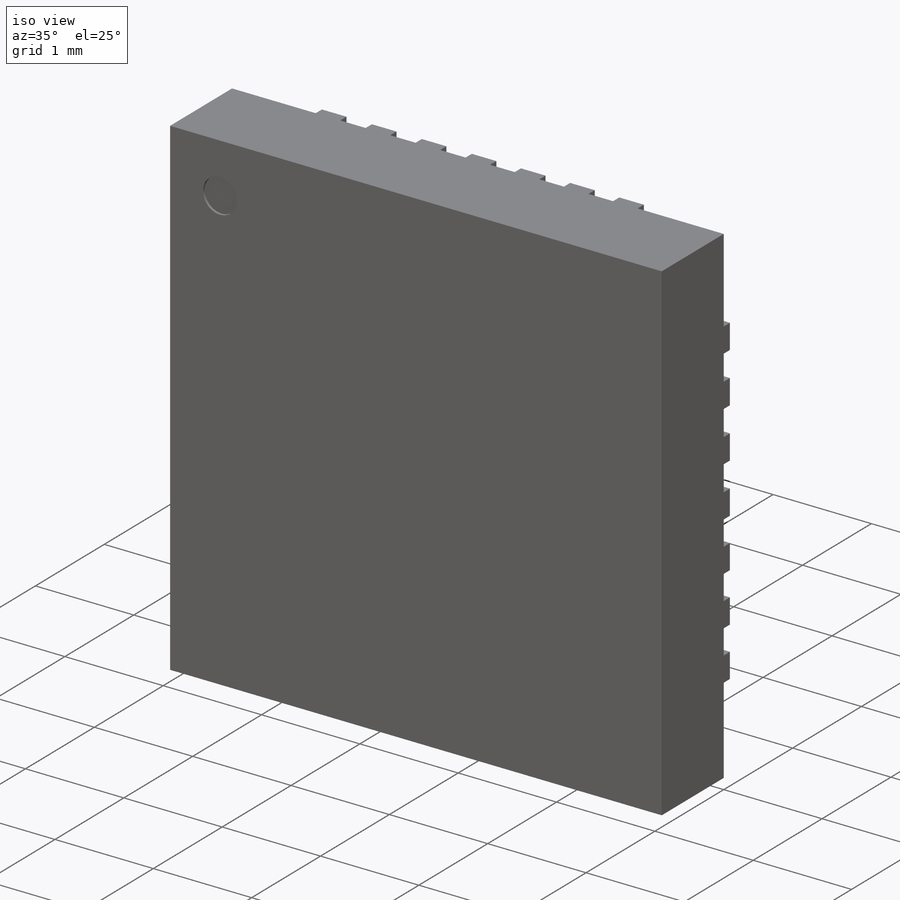
[diagram: iso view]
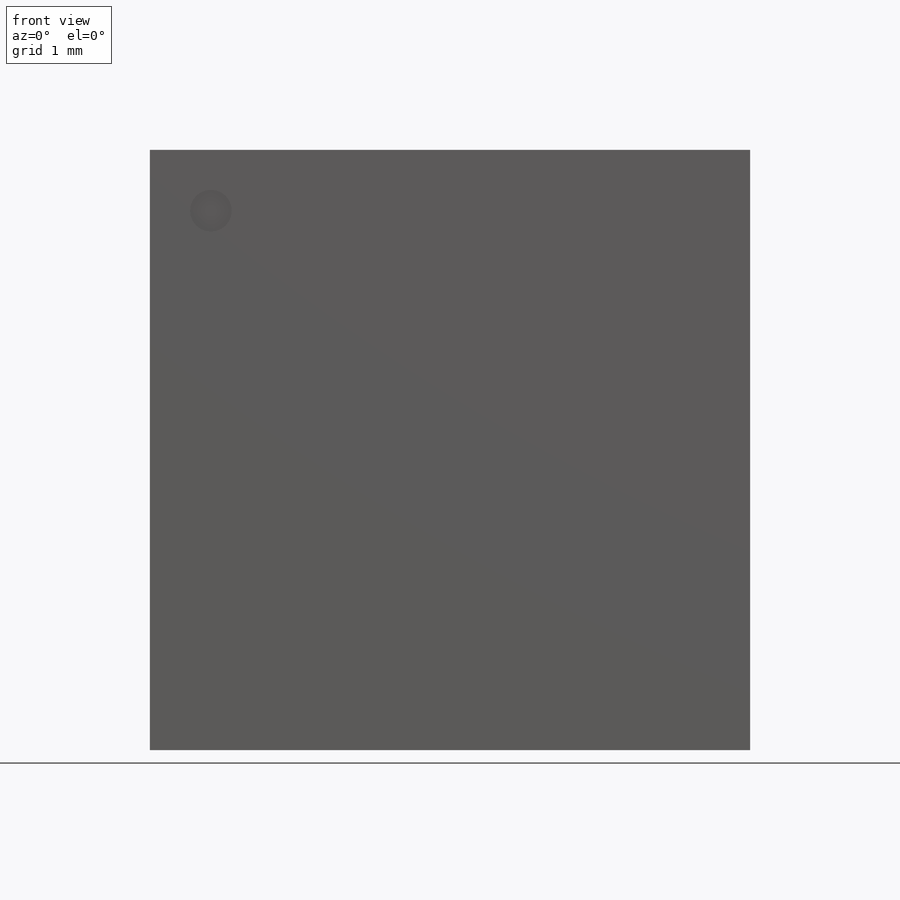
[diagram: front view]
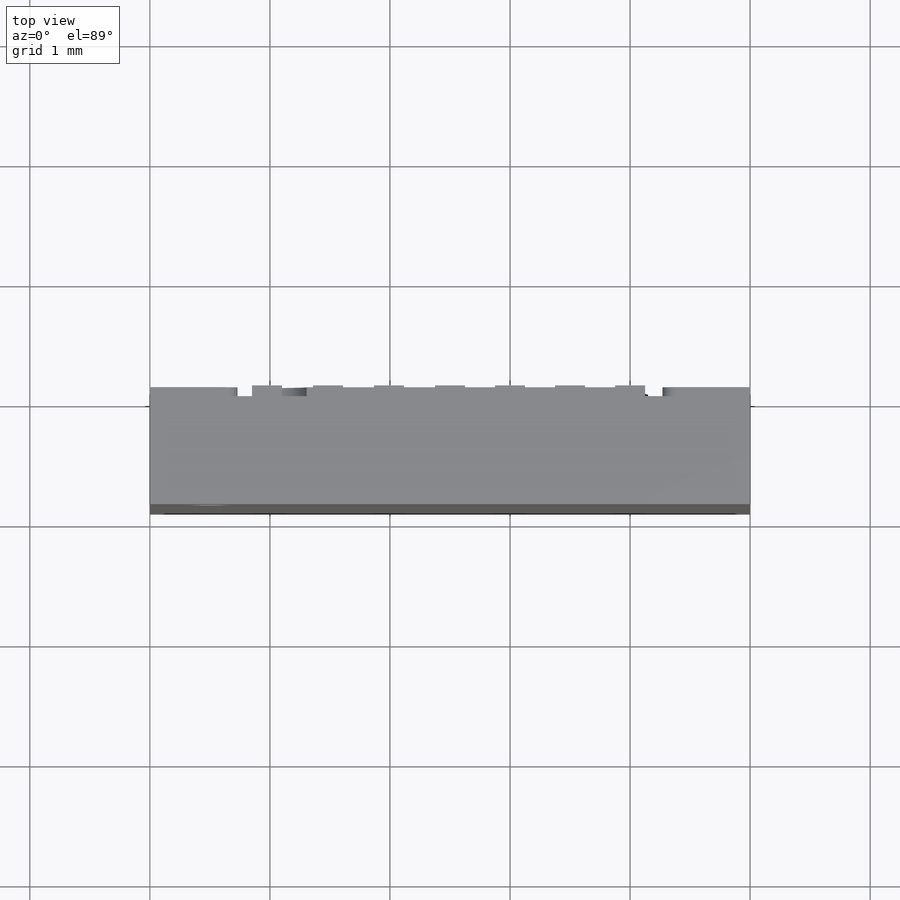
[diagram: top view]
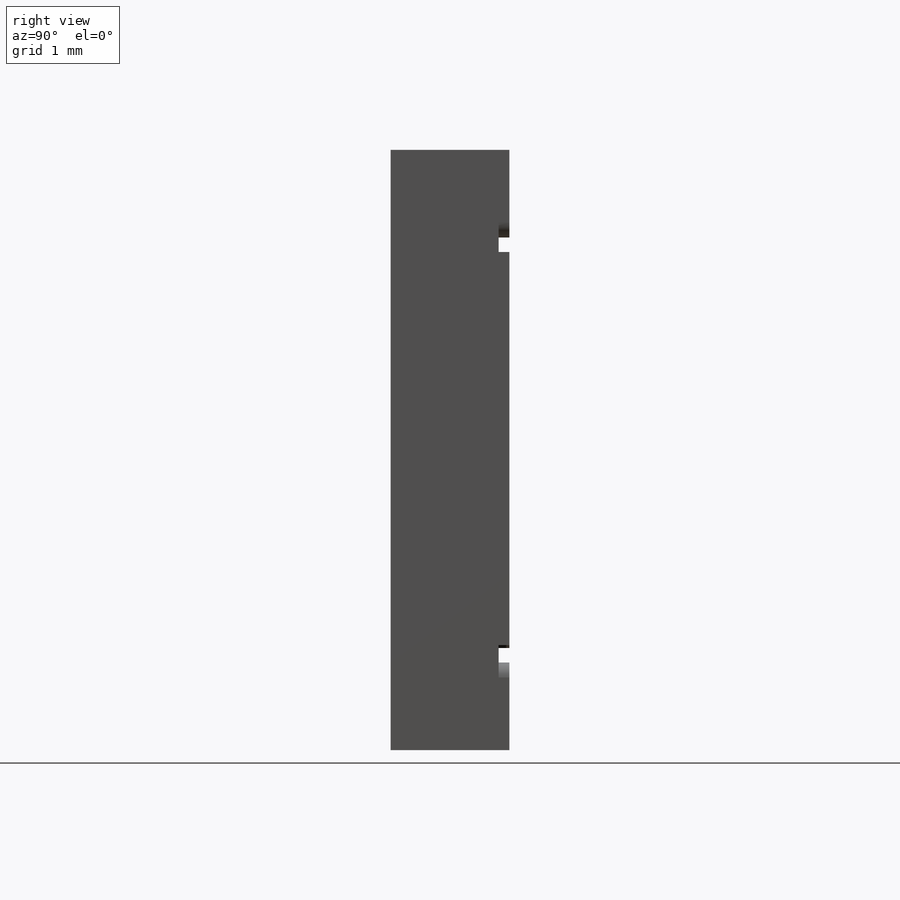
[diagram: right view]
SOLIDWORKS PART (.sldprt)
format: sldprt  version: not decoded by parser v0  size: 415,232 bytes
history: native  units: mm
features: sketch x4, extrude x3, plane x2, material x1, pattern_circular x1, cut_extrude x1 (+13 scaffold rows collapsed)
feature tree (25):
  scaffold x13  (default folders/planes/origin — collapsed)
  material  "Material <not specified>"
  sketch  "Sketch1"  dims[D1=5.0mm D2=5.0mm]
  extrude  "Boss-Extrude1"  Depth=0.9mm
  sketch  "Sketch2"  dims[c1.D2=~0.16865mm c1.D3=0.125mm c1.D1=0.25mm c2.D2=0.605mm c2.D4=4.0 c2.D5=4.0]
  extrude  "Boss-Extrude3"  Depth=0.09mm
  plane  "Plane1"
  plane  "Plane2"
  pattern_circular  "CirPattern1"  Count=4 Angle=360deg
  sketch  "Sketch4"  dims[D1=0.508mm D2=0.508mm]
  cut_extrude  "Cut-Extrude1"  Depth=0.0254mm
  sketch  "Sketch5"  dims[D3=0.381mm D1=3.15mm D2=3.15mm]
  extrude  "Boss-Extrude5"  Depth=0.09mm
decode coverage: 9 of 9 modeling features carry decoded parameters
note: ~ marks probable driven/reference dimensions
note: suppression state not decoded; provenance and decode notes live in map.json
